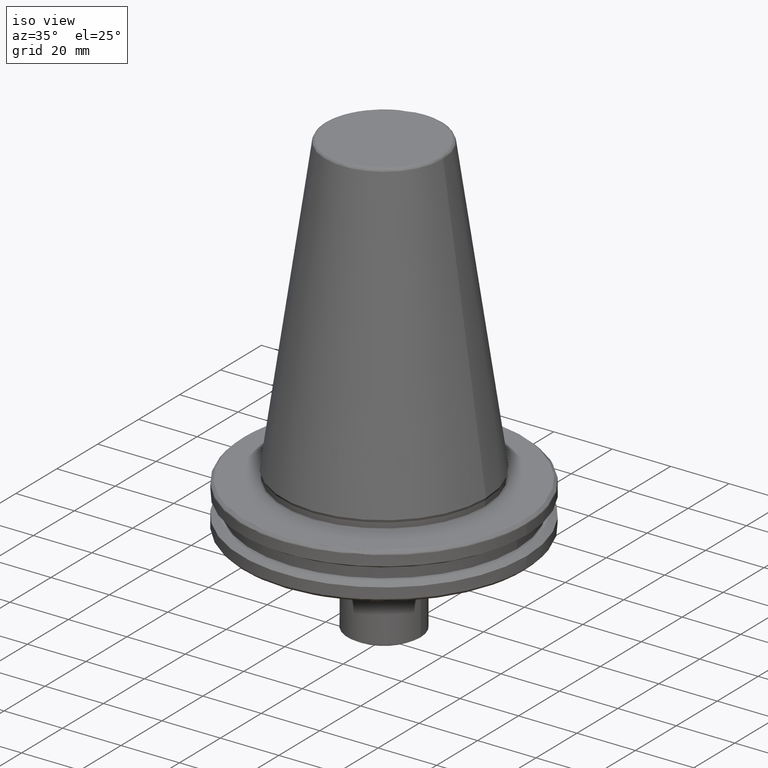
[diagram: clean part render]
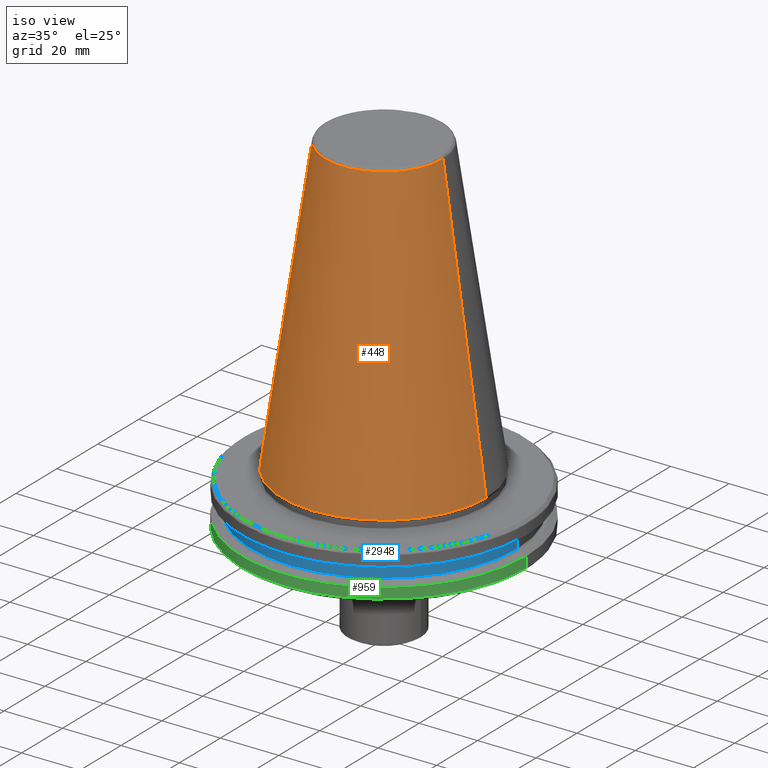
[diagram: same view with three faces highlighted in distinct colors, each labeled with its STEP entity id]
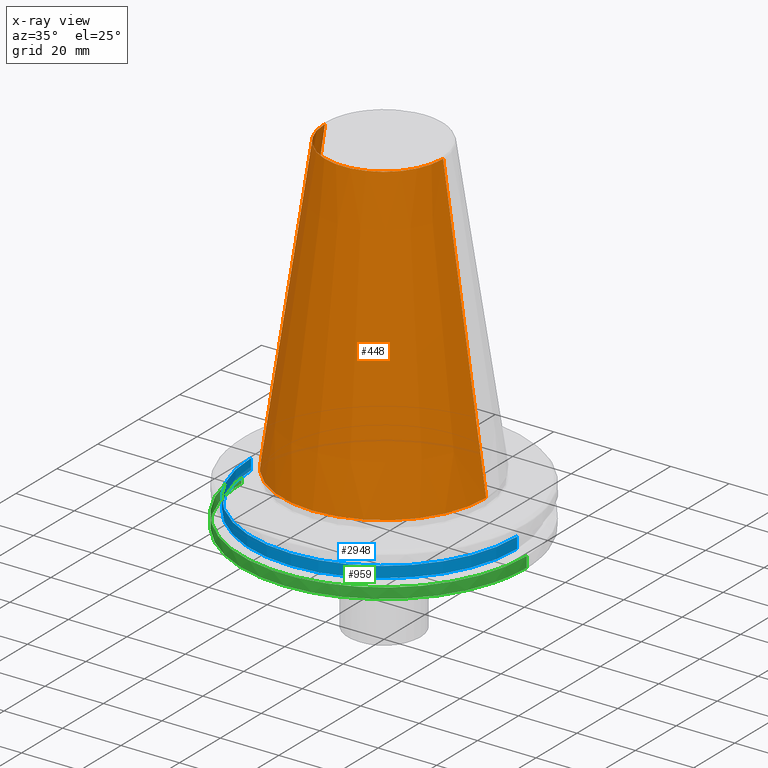
[diagram: x-ray of the same camera — body ghosted, the three highlighted faces saturated]
A machine part, iso view with three faces highlighted in distinct colors.
The next image is the same camera in x-ray (body ghosted, the three faces saturated) — at least one of them is partly hidden behind the body in this view.
Their STEP definitions:

[orange] entity #448 — the highlighted conical surface has half-angle 8.297 deg.
#14 = CARTESIAN_POINT ( 'NONE',  ( -34.92500000000000400, 4.277078946022131700E-015, 0.0000000000000000000 ) ) ;
#76 = VERTEX_POINT ( 'NONE', #2209 ) ;
#159 = VECTOR ( 'NONE', #2813, 1000.000000000000000 ) ;
#223 = DIRECTION ( 'NONE',  ( -1.000000000000000000, 0.0000000000000000000, 0.0000000000000000000 ) ) ;
#265 = LINE ( 'NONE', #1945, #159 ) ;
#448 = ADVANCED_FACE ( 'NONE', ( #1649 ), #1866, .T. ) ;
#493 = EDGE_CURVE ( 'NONE', #778, #2748, #2556, .T. ) ;
#503 = CIRCLE ( 'NONE', #2249, 34.92499999999999700 ) ;
#516 = EDGE_CURVE ( 'NONE', #778, #76, #2343, .T. ) ;
#778 = VERTEX_POINT ( 'NONE', #1307 ) ;
#852 = ORIENTED_EDGE ( 'NONE', *, *, #516, .T. ) ;
#1049 = VERTEX_POINT ( 'NONE', #14 ) ;
#1213 = AXIS2_PLACEMENT_3D ( 'NONE', #2912, #2298, #1972 ) ;
#1230 = AXIS2_PLACEMENT_3D ( 'NONE', #2020, #1332, #2499 ) ;
#1290 = ORIENTED_EDGE ( 'NONE', *, *, #2257, .T. ) ;
#1307 = CARTESIAN_POINT ( 'NONE',  ( 20.21110778703758000, 3.376112895941951000E-015, 100.8943082272673000 ) ) ;
#1332 = DIRECTION ( 'NONE',  ( 0.0000000000000000000, 0.0000000000000000000, -1.000000000000000000 ) ) ;
#1403 = CARTESIAN_POINT ( 'NONE',  ( 34.92500000000000400, 0.0000000000000000000, 0.0000000000000000000 ) ) ;
#1649 = FACE_OUTER_BOUND ( 'NONE', #2621, .T. ) ;
#1656 = DIRECTION ( 'NONE',  ( -0.0000000000000000000, -0.0000000000000000000, 1.000000000000000000 ) ) ;
#1767 = EDGE_CURVE ( 'NONE', #76, #1049, #265, .T. ) ;
#1866 = CONICAL_SURFACE ( 'NONE', #1230, 34.92499999999999700, 0.1448138465474189400 ) ;
#1945 = CARTESIAN_POINT ( 'NONE',  ( -34.92499999999999700, 0.0000000000000000000, -1.387778780781445700E-014 ) ) ;
#1972 = DIRECTION ( 'NONE',  ( -1.000000000000000000, 0.0000000000000000000, 0.0000000000000000000 ) ) ;
#2020 = CARTESIAN_POINT ( 'NONE',  ( 0.0000000000000000000, 0.0000000000000000000, -1.387778780781445700E-014 ) ) ;
#2209 = CARTESIAN_POINT ( 'NONE',  ( -20.21110778703758000, 0.0000000000000000000, 100.8943082272673000 ) ) ;
#2249 = AXIS2_PLACEMENT_3D ( 'NONE', #2951, #1656, #223 ) ;
#2257 = EDGE_CURVE ( 'NONE', #1049, #2748, #503, .T. ) ;
#2298 = DIRECTION ( 'NONE',  ( 0.0000000000000000000, 0.0000000000000000000, -1.000000000000000000 ) ) ;
#2332 = ORIENTED_EDGE ( 'NONE', *, *, #493, .F. ) ;
#2343 = CIRCLE ( 'NONE', #1213, 20.21110778703758000 ) ;
#2412 = ORIENTED_EDGE ( 'NONE', *, *, #1767, .T. ) ;
#2449 = VECTOR ( 'NONE', #2736, 1000.000000000000000 ) ;
#2499 = DIRECTION ( 'NONE',  ( -1.000000000000000000, 0.0000000000000000000, 0.0000000000000000000 ) ) ;
#2556 = LINE ( 'NONE', #2672, #2449 ) ;
#2621 = EDGE_LOOP ( 'NONE', ( #2332, #852, #2412, #1290 ) ) ;
#2672 = CARTESIAN_POINT ( 'NONE',  ( 34.92499999999999700, 4.277078946022130900E-015, -1.387778780781445700E-014 ) ) ;
#2736 = DIRECTION ( 'NONE',  ( 0.1443082272673069400, 1.767266086135362400E-017, -0.9895327864921743500 ) ) ;
#2748 = VERTEX_POINT ( 'NONE', #1403 ) ;
#2813 = DIRECTION ( 'NONE',  ( -0.1443082272673069400, 0.0000000000000000000, -0.9895327864921743500 ) ) ;
#2912 = CARTESIAN_POINT ( 'NONE',  ( 0.0000000000000000000, 0.0000000000000000000, 100.8943082272673000 ) ) ;
#2951 = CARTESIAN_POINT ( 'NONE',  ( 0.0000000000000000000, 0.0000000000000000000, 0.0000000000000000000 ) ) ;

[blue] entity #2948 — the highlighted cylindrical surface (partial cylindrical patch) has radius 45.5 mm, axis along (0, 0, 1).
#33 = EDGE_LOOP ( 'NONE', ( #803, #2507, #705, #1552 ) ) ;
#53 = AXIS2_PLACEMENT_3D ( 'NONE', #1449, #1684, #1200 ) ;
#382 = CIRCLE ( 'NONE', #2623, 45.50000000000000000 ) ;
#436 = LINE ( 'NONE', #639, #868 ) ;
#639 = CARTESIAN_POINT ( 'NONE',  ( -45.50000000000000000, 5.572142936120457100E-015, 113.5216080541959500 ) ) ;
#705 = ORIENTED_EDGE ( 'NONE', *, *, #1981, .T. ) ;
#787 = EDGE_CURVE ( 'NONE', #2686, #2016, #382, .T. ) ;
#803 = ORIENTED_EDGE ( 'NONE', *, *, #2642, .F. ) ;
#868 = VECTOR ( 'NONE', #2076, 1000.000000000000000 ) ;
#944 = DIRECTION ( 'NONE',  ( 0.0000000000000000000, 0.0000000000000000000, 1.000000000000000000 ) ) ;
#997 = VECTOR ( 'NONE', #2860, 1000.000000000000000 ) ;
#1026 = CIRCLE ( 'NONE', #2316, 45.50000000000000000 ) ;
#1079 = CARTESIAN_POINT ( 'NONE',  ( -45.50000000000000000, 5.572142936120457100E-015, -9.199999999999999300 ) ) ;
#1200 = DIRECTION ( 'NONE',  ( 1.000000000000000000, 0.0000000000000000000, 0.0000000000000000000 ) ) ;
#1261 = VERTEX_POINT ( 'NONE', #2666 ) ;
#1449 = CARTESIAN_POINT ( 'NONE',  ( 0.0000000000000000000, 0.0000000000000000000, 113.5216080541959500 ) ) ;
#1552 = ORIENTED_EDGE ( 'NONE', *, *, #787, .T. ) ;
#1555 = CARTESIAN_POINT ( 'NONE',  ( 45.50000000000000000, 0.0000000000000000000, 113.5216080541959500 ) ) ;
#1684 = DIRECTION ( 'NONE',  ( 0.0000000000000000000, 0.0000000000000000000, 1.000000000000000000 ) ) ;
#1692 = CARTESIAN_POINT ( 'NONE',  ( 0.0000000000000000000, 0.0000000000000000000, -9.199999999999999300 ) ) ;
#1795 = DIRECTION ( 'NONE',  ( -0.0000000000000000000, -0.0000000000000000000, -1.000000000000000000 ) ) ;
#1981 = EDGE_CURVE ( 'NONE', #1261, #2686, #2785, .T. ) ;
#2016 = VERTEX_POINT ( 'NONE', #1079 ) ;
#2019 = DIRECTION ( 'NONE',  ( 1.000000000000000000, 0.0000000000000000000, 0.0000000000000000000 ) ) ;
#2069 = VERTEX_POINT ( 'NONE', #2477 ) ;
#2076 = DIRECTION ( 'NONE',  ( 0.0000000000000000000, 0.0000000000000000000, 1.000000000000000000 ) ) ;
#2314 = CARTESIAN_POINT ( 'NONE',  ( 45.50000000000000000, 0.0000000000000000000, -9.199999999999999300 ) ) ;
#2316 = AXIS2_PLACEMENT_3D ( 'NONE', #2359, #944, #2566 ) ;
#2359 = CARTESIAN_POINT ( 'NONE',  ( 0.0000000000000000000, 0.0000000000000000000, -13.00000000000001100 ) ) ;
#2477 = CARTESIAN_POINT ( 'NONE',  ( -45.50000000000000000, 5.572142936120457100E-015, -13.00000000000001100 ) ) ;
#2507 = ORIENTED_EDGE ( 'NONE', *, *, #2924, .T. ) ;
#2546 = FACE_OUTER_BOUND ( 'NONE', #33, .T. ) ;
#2566 = DIRECTION ( 'NONE',  ( 1.000000000000000000, 0.0000000000000000000, 0.0000000000000000000 ) ) ;
#2619 = CYLINDRICAL_SURFACE ( 'NONE', #53, 45.50000000000000000 ) ;
#2623 = AXIS2_PLACEMENT_3D ( 'NONE', #1692, #1795, #2019 ) ;
#2642 = EDGE_CURVE ( 'NONE', #2069, #2016, #436, .T. ) ;
#2666 = CARTESIAN_POINT ( 'NONE',  ( 45.50000000000000000, 0.0000000000000000000, -13.00000000000001100 ) ) ;
#2686 = VERTEX_POINT ( 'NONE', #2314 ) ;
#2785 = LINE ( 'NONE', #1555, #997 ) ;
#2860 = DIRECTION ( 'NONE',  ( 0.0000000000000000000, 0.0000000000000000000, 1.000000000000000000 ) ) ;
#2924 = EDGE_CURVE ( 'NONE', #2069, #1261, #1026, .T. ) ;
#2948 = ADVANCED_FACE ( 'NONE', ( #2546 ), #2619, .T. ) ;

[green] entity #959 — the highlighted cylindrical surface (partial cylindrical patch) has radius 48.75 mm, axis along (0, 0, 1).
#47 = CYLINDRICAL_SURFACE ( 'NONE', #2171, 48.75000000000000000 ) ;
#105 = CARTESIAN_POINT ( 'NONE',  ( 46.87302845420869300, -13.39707817141270700, -17.93431457505077000 ) ) ;
#152 = DIRECTION ( 'NONE',  ( -0.0000000000000000000, 1.221768404791323400E-016, -1.000000000000000000 ) ) ;
#154 = FACE_OUTER_BOUND ( 'NONE', #1460, .T. ) ;
#216 = CARTESIAN_POINT ( 'NONE',  ( -46.83796378645139000, -13.51915856623735800, -17.93431457505077000 ) ) ;
#335 = AXIS2_PLACEMENT_3D ( 'NONE', #1309, #152, #1314 ) ;
#358 = ORIENTED_EDGE ( 'NONE', *, *, #1887, .T. ) ;
#491 = VERTEX_POINT ( 'NONE', #903 ) ;
#556 = CARTESIAN_POINT ( 'NONE',  ( 0.0000000000000000000, 0.0000000000000000000, 113.5216080541959500 ) ) ;
#577 = CARTESIAN_POINT ( 'NONE',  ( 0.0000000000000000000, 0.0000000000000000000, -17.93431457505076300 ) ) ;
#618 = AXIS2_PLACEMENT_3D ( 'NONE', #577, #2256, #820 ) ;
#629 = ORIENTED_EDGE ( 'NONE', *, *, #687, .F. ) ;
#633 = CARTESIAN_POINT ( 'NONE',  ( 48.75000000000000000, 0.0000000000000000000, 113.5216080541959500 ) ) ;
#687 = EDGE_CURVE ( 'NONE', #1586, #1076, #2138, .T. ) ;
#727 = VECTOR ( 'NONE', #2237, 1000.000000000000000 ) ;
#745 = CIRCLE ( 'NONE', #2502, 48.75000000000000000 ) ;
#746 = EDGE_CURVE ( 'NONE', #2356, #918, #1810, .T. ) ;
#767 = CIRCLE ( 'NONE', #618, 48.75000000000000000 ) ;
#770 = ORIENTED_EDGE ( 'NONE', *, *, #746, .F. ) ;
#820 = DIRECTION ( 'NONE',  ( 1.000000000000000000, 0.0000000000000000000, 0.0000000000000000000 ) ) ;
#903 = CARTESIAN_POINT ( 'NONE',  ( -48.75000000000001400, 5.970153145843347900E-015, -14.34759526419166200 ) ) ;
#918 = VERTEX_POINT ( 'NONE', #105 ) ;
#959 = ADVANCED_FACE ( 'NONE', ( #154 ), #47, .T. ) ;
#1009 = CARTESIAN_POINT ( 'NONE',  ( 48.75000000000001400, 0.0000000000000000000, -14.34759526419166200 ) ) ;
#1076 = VERTEX_POINT ( 'NONE', #2907 ) ;
#1078 = DIRECTION ( 'NONE',  ( 0.0000000000000000000, 0.0000000000000000000, 1.000000000000000000 ) ) ;
#1084 = CARTESIAN_POINT ( 'NONE',  ( 0.0000000000000000000, 0.0000000000000000000, -14.34759526419166200 ) ) ;
#1123 = EDGE_CURVE ( 'NONE', #1076, #491, #2537, .T. ) ;
#1246 = DIRECTION ( 'NONE',  ( 0.0000000000000000000, 1.000000000000000000, 1.423362852083533900E-016 ) ) ;
#1281 = VECTOR ( 'NONE', #2306, 1000.000000000000000 ) ;
#1309 = CARTESIAN_POINT ( 'NONE',  ( 0.0000000000000000000, -5.848918433375588500E-015, -17.93431457505077000 ) ) ;
#1314 = DIRECTION ( 'NONE',  ( 0.0000000000000000000, 1.000000000000000000, 1.423362852083533900E-016 ) ) ;
#1323 = DIRECTION ( 'NONE',  ( -1.000000000000000000, 0.0000000000000000000, 0.0000000000000000000 ) ) ;
#1369 = EDGE_CURVE ( 'NONE', #491, #2383, #745, .T. ) ;
#1460 = EDGE_LOOP ( 'NONE', ( #2291, #629, #358, #770, #2447, #2303 ) ) ;
#1561 = LINE ( 'NONE', #633, #1281 ) ;
#1586 = VERTEX_POINT ( 'NONE', #216 ) ;
#1810 = CIRCLE ( 'NONE', #335, 48.75000000000000700 ) ;
#1887 = EDGE_CURVE ( 'NONE', #1586, #918, #767, .T. ) ;
#1983 = CARTESIAN_POINT ( 'NONE',  ( -48.75000000000000000, 5.970153145843347100E-015, 113.5216080541959500 ) ) ;
#2089 = EDGE_CURVE ( 'NONE', #2356, #2383, #1561, .T. ) ;
#2138 = CIRCLE ( 'NONE', #2938, 48.75000000000000700 ) ;
#2171 = AXIS2_PLACEMENT_3D ( 'NONE', #556, #1078, #2824 ) ;
#2212 = CARTESIAN_POINT ( 'NONE',  ( 0.0000000000000000000, -5.848918433375588500E-015, -17.93431457505077000 ) ) ;
#2237 = DIRECTION ( 'NONE',  ( 0.0000000000000000000, 0.0000000000000000000, 1.000000000000000000 ) ) ;
#2256 = DIRECTION ( 'NONE',  ( 0.0000000000000000000, 0.0000000000000000000, 1.000000000000000000 ) ) ;
#2291 = ORIENTED_EDGE ( 'NONE', *, *, #1123, .F. ) ;
#2292 = DIRECTION ( 'NONE',  ( -0.0000000000000000000, 1.221768404791323400E-016, -1.000000000000000000 ) ) ;
#2303 = ORIENTED_EDGE ( 'NONE', *, *, #1369, .F. ) ;
#2306 = DIRECTION ( 'NONE',  ( 0.0000000000000000000, 0.0000000000000000000, 1.000000000000000000 ) ) ;
#2356 = VERTEX_POINT ( 'NONE', #2401 ) ;
#2383 = VERTEX_POINT ( 'NONE', #1009 ) ;
#2401 = CARTESIAN_POINT ( 'NONE',  ( 48.75000000000001400, 2.311115933264683000E-030, -17.93431457505077000 ) ) ;
#2447 = ORIENTED_EDGE ( 'NONE', *, *, #2089, .T. ) ;
#2502 = AXIS2_PLACEMENT_3D ( 'NONE', #1084, #2684, #1323 ) ;
#2537 = LINE ( 'NONE', #1983, #727 ) ;
#2684 = DIRECTION ( 'NONE',  ( -0.0000000000000000000, -0.0000000000000000000, 1.000000000000000000 ) ) ;
#2824 = DIRECTION ( 'NONE',  ( 1.000000000000000000, 0.0000000000000000000, 0.0000000000000000000 ) ) ;
#2907 = CARTESIAN_POINT ( 'NONE',  ( -48.75000000000001400, 5.970153145843350300E-015, -17.93431457505077000 ) ) ;
#2938 = AXIS2_PLACEMENT_3D ( 'NONE', #2212, #2292, #1246 ) ;